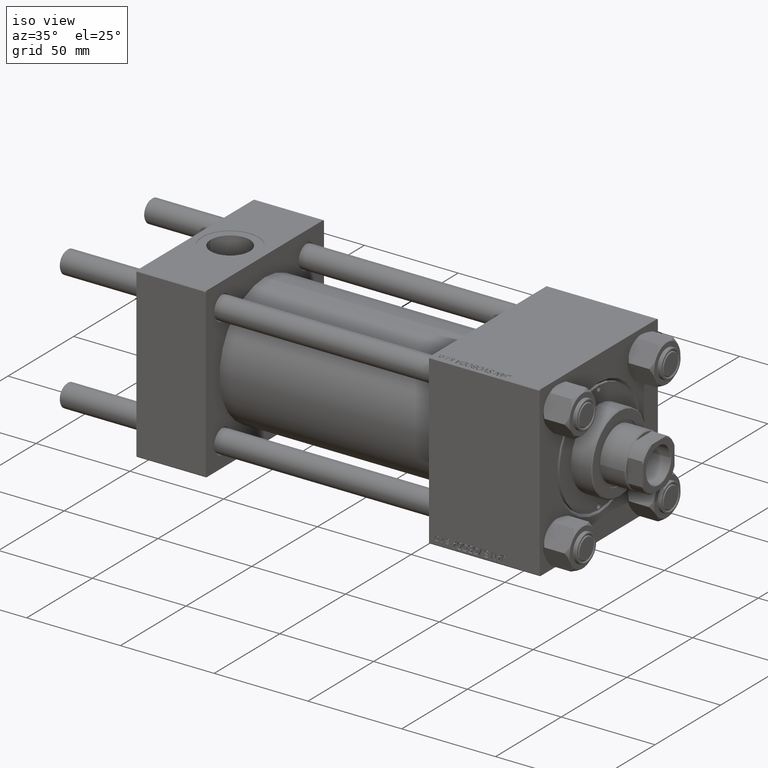
[diagram: clean part render]
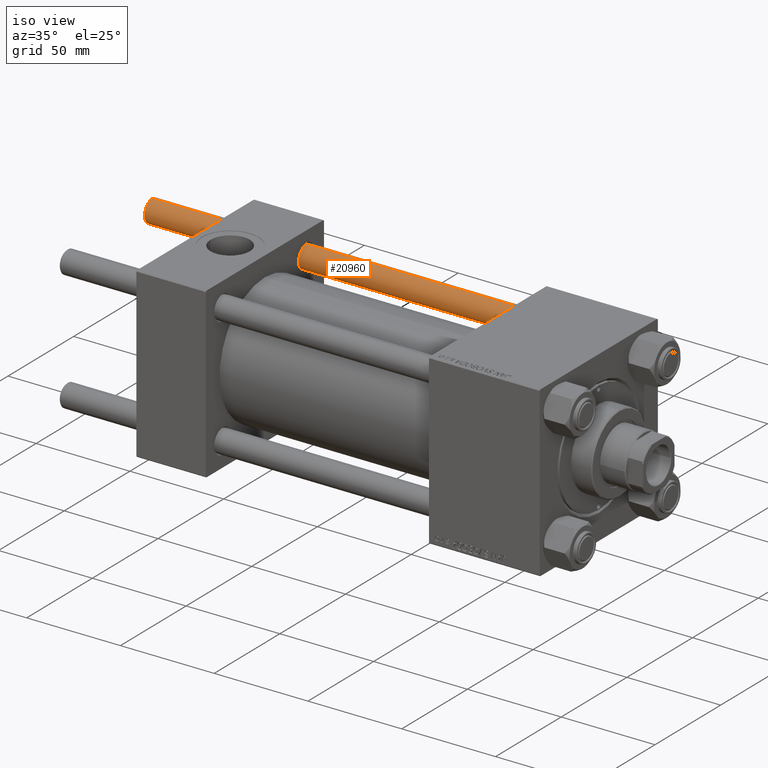
[diagram: same view with one face highlighted and labeled with its STEP entity id]
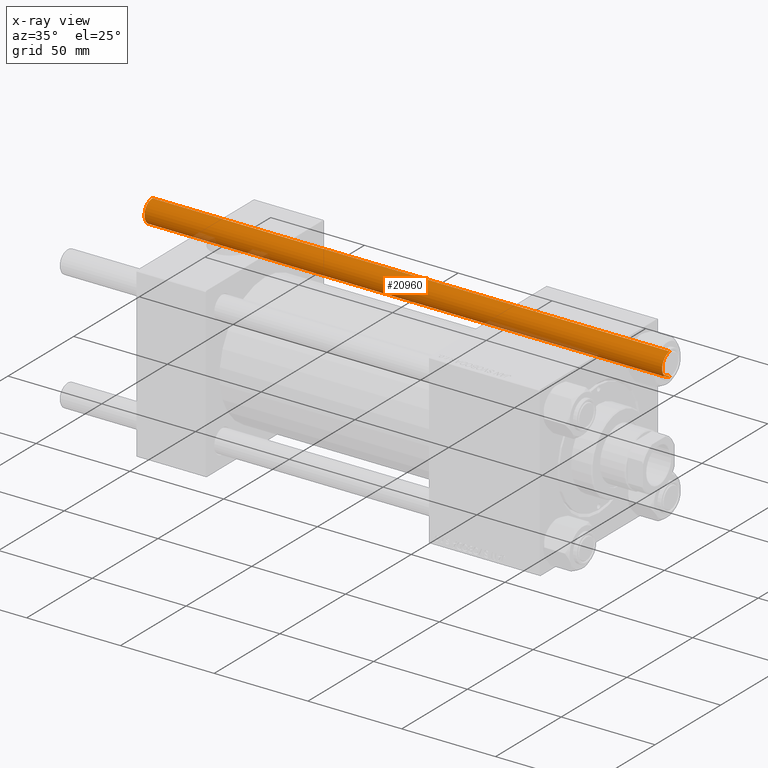
[diagram: x-ray of the same camera — body ghosted, the highlighted face saturated]
A machine part, iso view. The second image highlights one B-rep face of the part: STEP entity #20960.
The next image is the same camera in x-ray: the body ghosted, the highlighted face saturated — about 4% of this face is hidden behind the body in this view.
In plain terms, the highlighted cylindrical surface (edge-blend (fillet) strip) has radius 6 mm, axis along (-1, -0, -0).
Its self-contained STEP definition (entity closure, byte-faithful):
#3261 = EDGE_CURVE ( 'NONE', #32489, #27228, #31256, .T. ) ;
#3632 = DIRECTION ( 'NONE',  ( 1.000000000000000000, 0.000000000000000000, 0.000000000000000000 ) ) ;
#5055 = CIRCLE ( 'NONE', #36585, 6.000000000000000888 ) ;
#7552 = CARTESIAN_POINT ( 'NONE',  ( -6.000000000000000888, 0.000000000000000000, 0.5000000000000559552 ) ) ;
#8175 = CYLINDRICAL_SURFACE ( 'NONE', #34595, 6.000000000000000888 ) ;
#8396 = DIRECTION ( 'NONE',  ( -0.000000000000000000, -0.000000000000000000, 1.000000000000000000 ) ) ;
#8961 = VECTOR ( 'NONE', #28672, 1000.000000000000000 ) ;
#9181 = LINE ( 'NONE', #47620, #8961 ) ;
#11723 = CARTESIAN_POINT ( 'NONE',  ( 0.000000000000000000, 0.000000000000000000, 277.0000000000000000 ) ) ;
#13918 = ORIENTED_EDGE ( 'NONE', *, *, #27808, .F. ) ;
#14782 = CARTESIAN_POINT ( 'NONE',  ( 0.000000000000000000, 0.000000000000000000, 276.5000000000000000 ) ) ;
#15271 = DIRECTION ( 'NONE',  ( 0.000000000000000000, 0.000000000000000000, -1.000000000000000000 ) ) ;
#15788 = DIRECTION ( 'NONE',  ( -1.000000000000000000, 0.000000000000000000, 0.000000000000000000 ) ) ;
#17030 = EDGE_LOOP ( 'NONE', ( #13918, #49158, #31734, #27989 ) ) ;
#19580 = FACE_OUTER_BOUND ( 'NONE', #17030, .T. ) ;
#19644 = DIRECTION ( 'NONE',  ( -0.000000000000000000, -0.000000000000000000, -1.000000000000000000 ) ) ;
#20164 = EDGE_CURVE ( 'NONE', #23976, #32489, #41865, .T. ) ;
#20544 = CARTESIAN_POINT ( 'NONE',  ( 0.000000000000000000, 0.000000000000000000, 0.5000000000000559552 ) ) ;
#20960 = ADVANCED_FACE ( 'NONE', ( #19580 ), #8175, .T. ) ;
#22439 = CARTESIAN_POINT ( 'NONE',  ( 6.000000000000000888, 7.347880794884120722E-16, 276.5000000000000000 ) ) ;
#23976 = VERTEX_POINT ( 'NONE', #22439 ) ;
#26427 = DIRECTION ( 'NONE',  ( -0.000000000000000000, -0.000000000000000000, -1.000000000000000000 ) ) ;
#27046 = VECTOR ( 'NONE', #19644, 1000.000000000000000 ) ;
#27228 = VERTEX_POINT ( 'NONE', #7552 ) ;
#27808 = EDGE_CURVE ( 'NONE', #23976, #33730, #9181, .T. ) ;
#27989 = ORIENTED_EDGE ( 'NONE', *, *, #35522, .T. ) ;
#28672 = DIRECTION ( 'NONE',  ( -0.000000000000000000, -0.000000000000000000, -1.000000000000000000 ) ) ;
#31256 = LINE ( 'NONE', #38842, #27046 ) ;
#31734 = ORIENTED_EDGE ( 'NONE', *, *, #3261, .T. ) ;
#32489 = VERTEX_POINT ( 'NONE', #44110 ) ;
#33730 = VERTEX_POINT ( 'NONE', #34177 ) ;
#34177 = CARTESIAN_POINT ( 'NONE',  ( 6.000000000000000888, 7.347880794884120722E-16, 0.5000000000000559552 ) ) ;
#34595 = AXIS2_PLACEMENT_3D ( 'NONE', #11723, #26427, #15788 ) ;
#35522 = EDGE_CURVE ( 'NONE', #27228, #33730, #5055, .T. ) ;
#36585 = AXIS2_PLACEMENT_3D ( 'NONE', #20544, #8396, #39253 ) ;
#37818 = AXIS2_PLACEMENT_3D ( 'NONE', #14782, #15271, #3632 ) ;
#38842 = CARTESIAN_POINT ( 'NONE',  ( -6.000000000000000888, 0.000000000000000000, 277.0000000000000000 ) ) ;
#39253 = DIRECTION ( 'NONE',  ( 1.000000000000000000, 0.000000000000000000, 0.000000000000000000 ) ) ;
#41865 = CIRCLE ( 'NONE', #37818, 6.000000000000000888 ) ;
#44110 = CARTESIAN_POINT ( 'NONE',  ( -6.000000000000000888, 0.000000000000000000, 276.5000000000000000 ) ) ;
#47620 = CARTESIAN_POINT ( 'NONE',  ( 6.000000000000000888, 7.347880794884120722E-16, 277.0000000000000000 ) ) ;
#49158 = ORIENTED_EDGE ( 'NONE', *, *, #20164, .T. ) ;